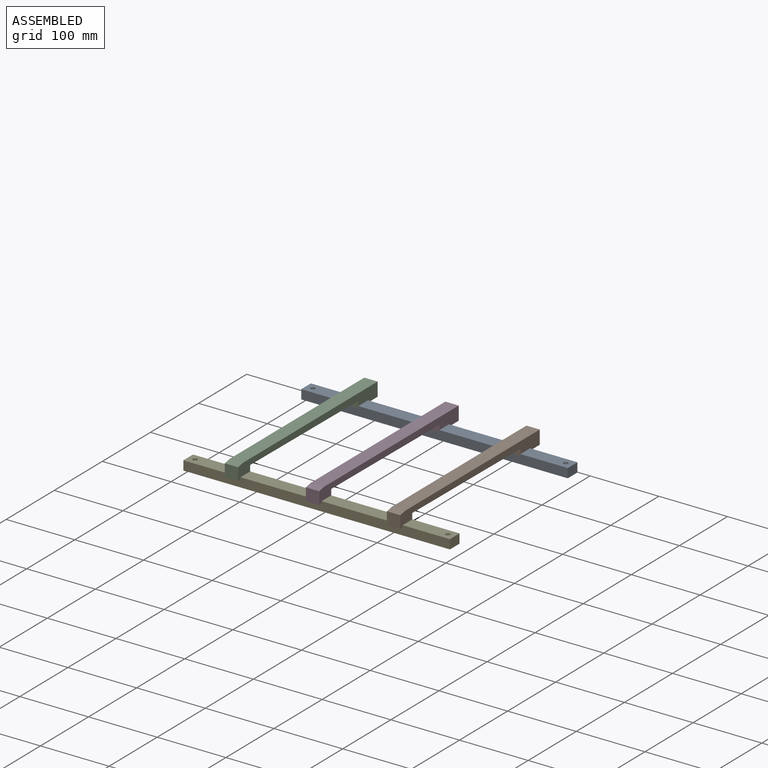
[diagram: assembled view]
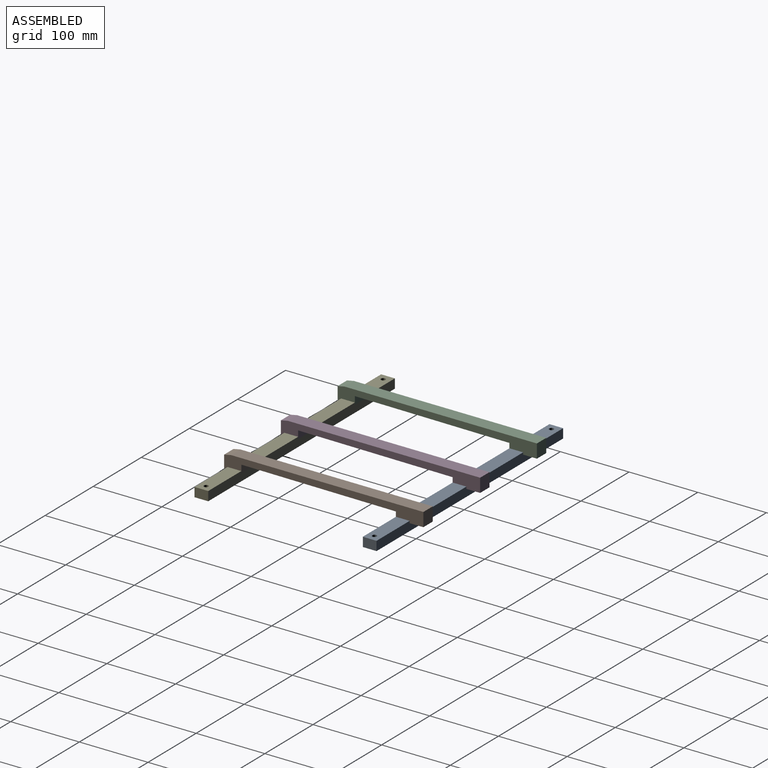
[diagram: assembled view, second angle]
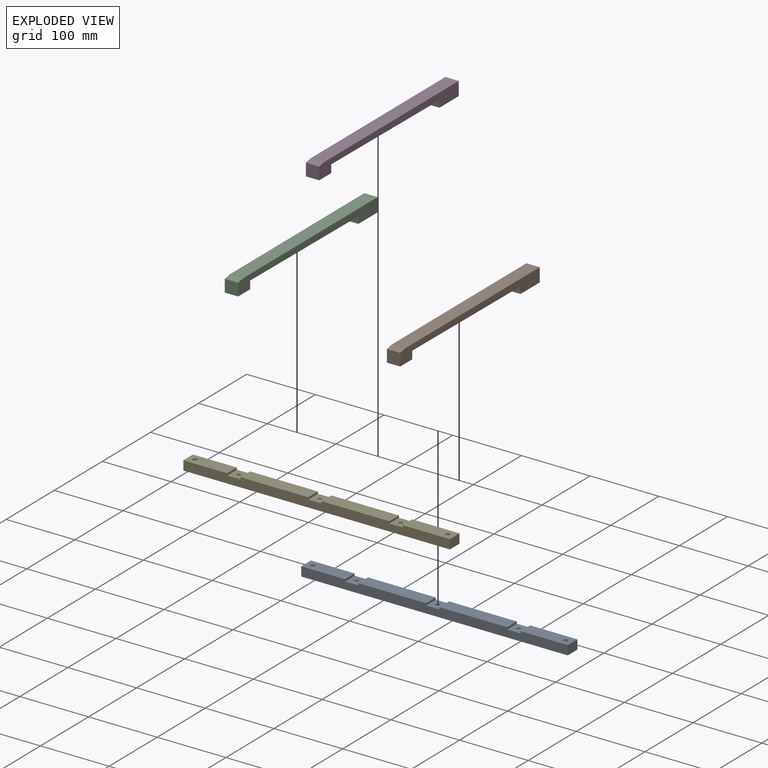
[diagram: exploded view]
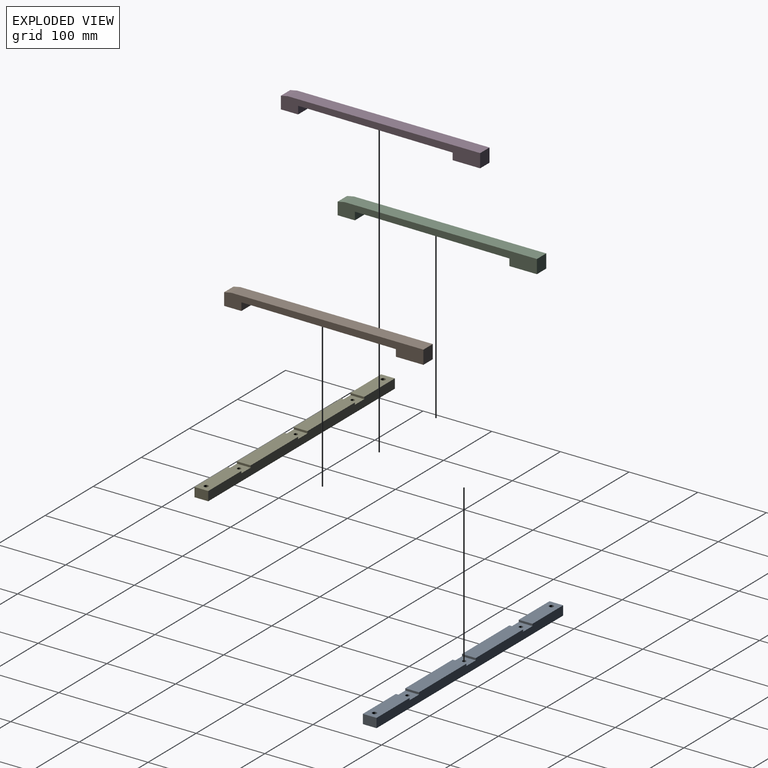
[diagram: exploded view, second angle]
ASSEMBLY  parts=5 mates=4
PART A: 29 faces, bbox 388x20x13.5 mm
  f0: plane 20x3mm, normal (1,0,0), area 60mm2, adj f1,f15,f16,f17
  f1: plane 98.6x20mm, normal (0,0,1), area 1972mm2, adj f0,f2,f16,f17
  f2: plane 20x3mm, normal (-1,0,0), area 60mm2, adj f1,f3,f16,f17
  f3: plane 20x19.4mm, normal (0,0,1), area 364.2mm2, adj f2,f4,f16,f17,f23
  f4: plane 20x3mm, normal (1,0,0), area 60mm2, adj f3,f5,f16,f17
  f5: plane 98.6x20mm, normal (0,0,1), area 1972mm2, adj f4,f6,f16,f17
  f6: plane 20x3mm, normal (-1,0,0), area 60mm2, adj f5,f7,f16,f17
  f7: plane 20x19.4mm, normal (0,0,1), area 364.2mm2, adj f6,f8,f16,f17,f26
  f8: plane 20x3mm, normal (1,0,0), area 60mm2, adj f7,f9,f16,f17
  f9: plane 63.8x20mm, normal (0,0,1), area 1242.8mm2, adj f8,f10,f16,f17,f19
  f10: plane 20x13.5mm, normal (-1,0,0), area 270mm2, adj f9,f11,f16,f17
  f11: plane 388x20mm, normal (0,0,-1), area 7458mm2, adj f10,f12,f16,f17,f18,f19,f22,f25
  f12: plane 20x13.5mm, normal (1,0,0), area 270mm2, adj f11,f13,f16,f17
  f13: plane 68.8x20mm, normal (0,0,1), area 1342.8mm2, adj f12,f14,f16,f17,f18
  f14: plane 20x3mm, normal (-1,0,0), area 60mm2, adj f13,f15,f16,f17
  f15: plane 20x19.4mm, normal (0,0,1), area 364.2mm2, adj f0,f14,f16,f17,f20
  f16: plane 388x13.5mm, normal (0,-1,0), area 5063.4mm2, adj f0,f1,f2,f3,f4,f5,f6,f7
  f17: plane 388x13.5mm, normal (0,1,0), area 5063.4mm2, adj f0,f1,f2,f3,f4,f5,f6,f7
  f18: cylinder r=3.25mm len=13.5mm, axis (0,0,1), area 275.7mm2, adj f11,f13
  f19: cylinder r=3.25mm len=13.5mm, axis (0,0,1), area 275.7mm2, adj f9,f11
  f20: cylinder r=2.75mm len=5.5mm, axis (0,0,-1), area 86.4mm2, adj f15,f21
  f21: plane 10x10mm, normal (0,0,-1), area 54.8mm2, adj f20,f22
  f22: cylinder r=5mm len=10mm, axis (0,0,-1), area 172.8mm2, adj f11,f21
  f23: cylinder r=2.75mm len=5.5mm, axis (0,0,-1), area 86.4mm2, adj f3,f24
  f24: plane 10x10mm, normal (0,0,-1), area 54.8mm2, adj f23,f25
  f25: cylinder r=5mm len=10mm, axis (0,0,-1), area 172.8mm2, adj f11,f24
  f26: cylinder r=2.75mm len=5.5mm, axis (0,0,-1), area 86.4mm2, adj f7,f27
  f27: plane 10x10mm, normal (0,0,-1), area 54.8mm2, adj f26,f28
  f28: cylinder r=5mm len=10mm, axis (0,0,-1), area 172.8mm2, adj f11,f27
PART B: 15 faces, bbox 290x19.4x20 mm
  f0: plane 225x19.4mm, normal (-0.01,0,-1), area 4365.1mm2, adj f1,f8,f9,f10
  f1: plane 19.4x10mm, normal (-1,0,0), area 194mm2, adj f0,f2,f9,f10
  f2: plane 40x19.4mm, normal (0,0,-1), area 762.1mm2, adj f1,f3,f9,f10,f12
  f3: plane 20x19.4mm, normal (1,0,0), area 388mm2, adj f2,f4,f9,f10
  f4: plane 280x19.4mm, normal (0,0,1), area 5432mm2, adj f3,f5,f9,f10
  f5: plane 19.4x10mm, normal (-0.2,0,0.98), area 197.8mm2, adj f4,f6,f9,f10
  f6: plane 19.4x18mm, normal (-1,0,0), area 349.2mm2, adj f5,f7,f9,f10
  f7: plane 25x19.4mm, normal (0,0,-1), area 471.1mm2, adj f6,f8,f9,f10,f14
  f8: plane 19.4x11.43mm, normal (1,0,0), area 221.7mm2, adj f0,f7,f9,f10
  f9: plane 290x20mm, normal (0,-1,0), area 3379.3mm2, adj f0,f1,f2,f3,f4,f5,f6,f7
  f10: plane 290x20mm, normal (0,1,0), area 3379.3mm2, adj f0,f1,f2,f3,f4,f5,f6,f7
  f11: cone r=0mm half-angle=59deg, axis (0,0,-1), area 16.2mm2, adj f12
  f12: cylinder r=2.1mm len=14.4mm, axis (0,0,-1), area 190mm2, adj f2,f11
  f13: cone r=0mm half-angle=59deg, axis (0,0,-1), area 16.2mm2, adj f14
  f14: cylinder r=2.1mm len=14.4mm, axis (0,0,-1), area 190mm2, adj f7,f13
PART C: same geometry as B
PART D: same geometry as B
PART E: same geometry as A
PLACE A t=(1683.69,477.03,-766.57)mm
PLACE B rot(axis=(0,0,1),90deg) t=(1789.49,352.03,-752.82)mm
PLACE C rot(axis=(0,0,1),90deg) t=(1553.49,352.03,-752.82)mm
PLACE D rot(axis=(0,0,1),90deg) t=(1671.49,352.03,-752.82)mm
PLACE E rot(axis=(0,0,1),0deg) t=(1683.69,232.03,-766.57)mm
MATE revolute B.f11 <-> A.f20  axis (0,0,-1) through (1799.19,467.03,-762.82)mm
MATE revolute E.f20 <-> B.f13  axis (0,0,1) through (1799.19,222.03,-762.82)mm
MATE revolute D.f11 <-> A.f23  axis (0,0,-1) through (1681.19,467.03,-762.82)mm
MATE revolute C.f11 <-> A.f26  axis (0,0,-1) through (1563.19,467.03,-762.82)mm
